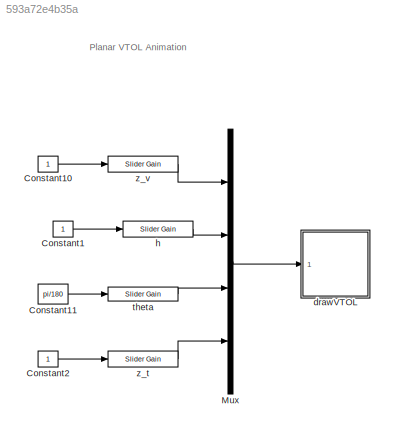
MODEL slx_593a72e4b35a
KIND model
CONFIG AbsTol = auto
CONFIG FixedStep = auto
CONFIG MaxStep = auto
CONFIG MinStep = auto
CONFIG RelTol = 1e-3
CONFIG SampleTimeConstraint = Unconstrained
CONFIG Solver = ode45
CONFIG SolverMode = Auto
CONFIG SolverName = ode45
CONFIG StartTime = 0.0
CONFIG StopTime = 10000
BLOCK [Constant] Constant1
BLOCK [Constant] Constant10
BLOCK [Constant] Constant11
  Value = pi/180
BLOCK [Constant] Constant2
BLOCK [Mux] Mux
  DisplayOption = bar
  Ports = [4, 1]
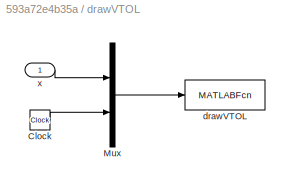
BLOCK [SubSystem] drawVTOL
  Ports = [1]
  RequestExecContextInheritance = off
BLOCK [Clock] drawVTOL/Clock
BLOCK [Mux] drawVTOL/Mux
  DisplayOption = bar
  Inputs = 2
  Ports = [2, 1]
BLOCK [MATLABFcn] drawVTOL/drawVTOL
  MATLABFcn = drawVTOL(u)
  OutputDimensions = 0
  Ports = [1]
  SampleTime = 0.1
BLOCK [Inport] drawVTOL/x
  IconDisplay = Port number
BLOCK [Reference] h  REF=simulink/Math
Operations/Slider
Gain
  Ports = [1, 1]
  SourceBlock = simulink/Math\nOperations/Slider\nGain
  SourceType = Slider Gain
  gain = 3.6
  high = 10
  low = 0
BLOCK [Reference] theta  REF=simulink/Math
Operations/Slider
Gain
  Ports = [1, 1]
  SourceBlock = simulink/Math\nOperations/Slider\nGain
  SourceType = Slider Gain
  gain = 27
  high = 90
  low = -90
BLOCK [Reference] z_t  REF=simulink/Math
Operations/Slider
Gain
  Ports = [1, 1]
  SourceBlock = simulink/Math\nOperations/Slider\nGain
  SourceType = Slider Gain
  gain = 4.2627
  high = 5
  low = 0
BLOCK [Reference] z_v  REF=simulink/Math
Operations/Slider
Gain
  Ports = [1, 1]
  SourceBlock = simulink/Math\nOperations/Slider\nGain
  SourceType = Slider Gain
  gain = 3
  high = 10
  low = 0
ANNOTATION (root): Planar VTOL Animation
LINE Constant10:1 -> z_v:1
LINE Constant11:1 -> theta:1
LINE Constant1:1 -> h:1
LINE Constant2:1 -> z_t:1
LINE Mux:1 -> drawVTOL:1
LINE drawVTOL/Clock:1 -> drawVTOL/Mux:2
LINE drawVTOL/Mux:1 -> drawVTOL/drawVTOL:1
LINE drawVTOL/x:1 -> drawVTOL/Mux:1
LINE h:1 -> Mux:2
LINE theta:1 -> Mux:3
LINE z_t:1 -> Mux:4
LINE z_v:1 -> Mux:1
